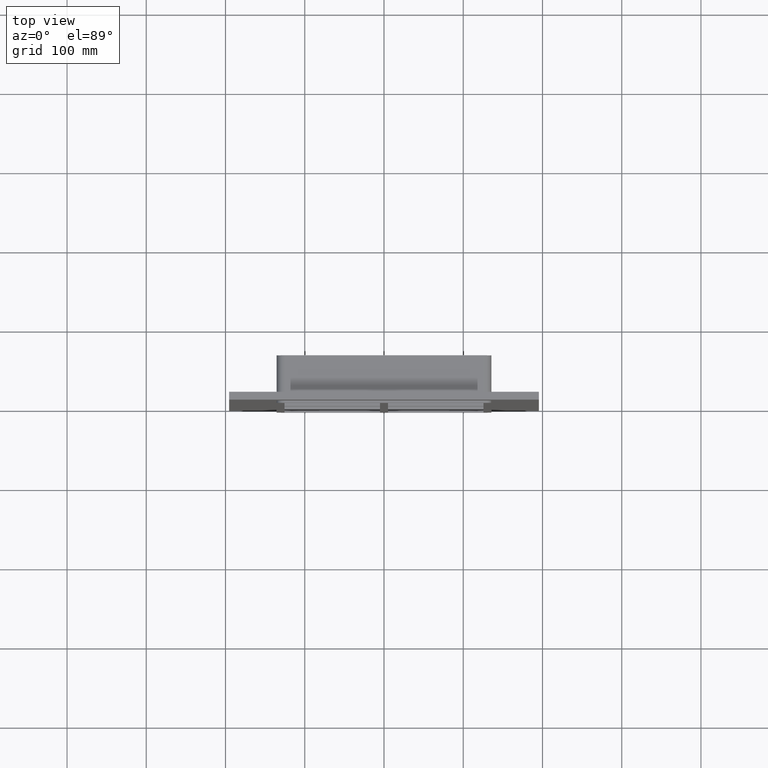
[diagram: clean part render]
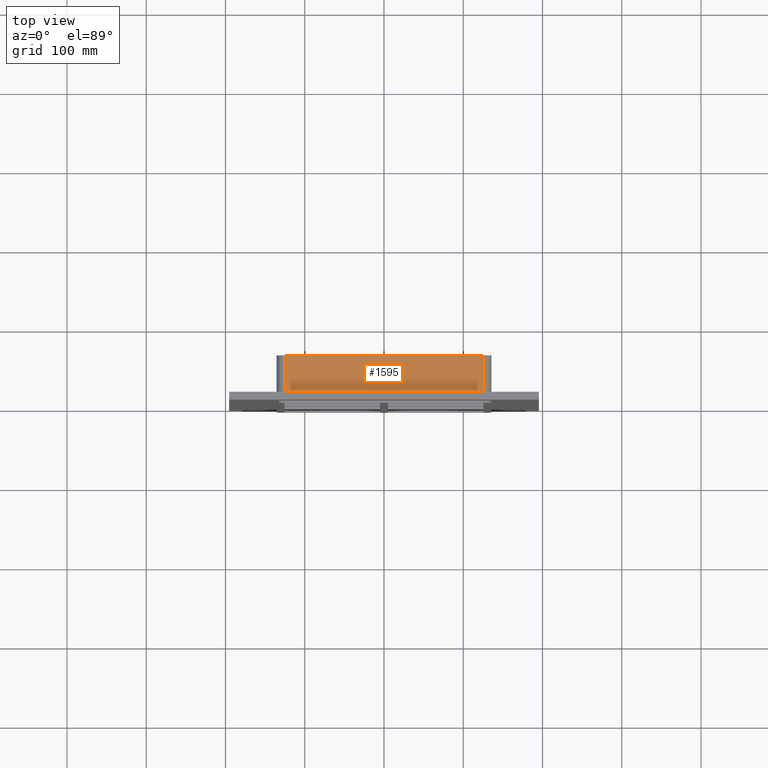
[diagram: same view with one face highlighted and labeled with its STEP entity id]
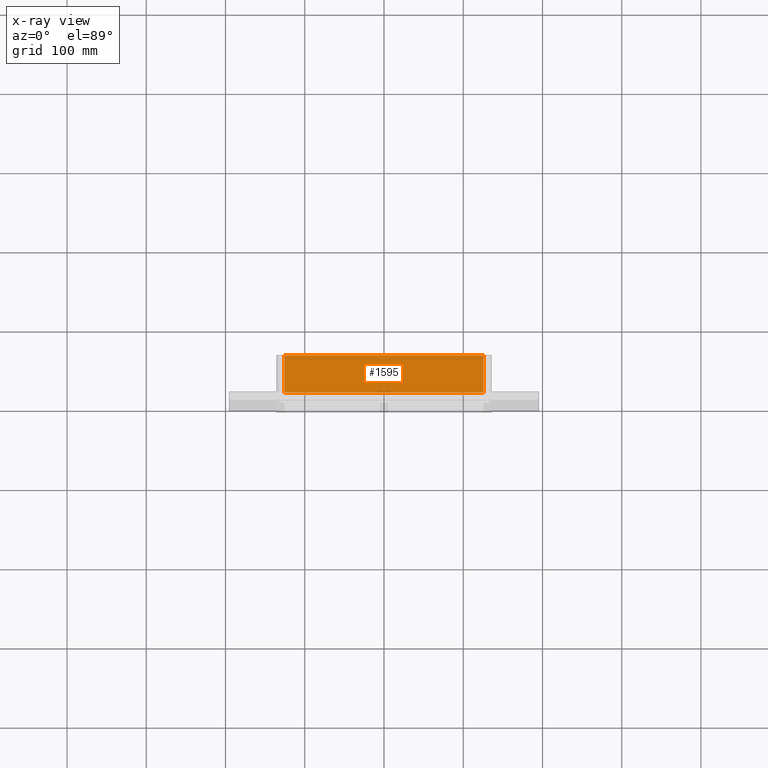
[diagram: x-ray of the same camera — body ghosted, the highlighted face saturated]
A machine part, top view. The second image highlights one B-rep face of the part: STEP entity #1595.
The next image is the same camera in x-ray: the body ghosted, the highlighted face saturated — about 0% of this face is hidden behind the body in this view.
In plain terms, the highlighted planar face has unit normal (0, 0, 1).
Its self-contained STEP definition (entity closure, byte-faithful):
#650=CARTESIAN_POINT('',(-125.5,57.0,357.0));
#651=VERTEX_POINT('',#650);
#659=CARTESIAN_POINT('',(125.5,57.0,357.0));
#660=VERTEX_POINT('',#659);
#661=CARTESIAN_POINT('',(-125.5,57.0,357.0));
#662=DIRECTION('',(1.0,0.0,0.0));
#663=VECTOR('',#662,251.0);
#664=LINE('',#661,#663);
#665=EDGE_CURVE('',#651,#660,#664,.T.);
#982=CARTESIAN_POINT('',(125.5,10.0,357.0));
#983=VERTEX_POINT('',#982);
#991=CARTESIAN_POINT('',(-125.5,10.0,357.0));
#992=VERTEX_POINT('',#991);
#993=CARTESIAN_POINT('',(-125.5,10.0,357.0));
#994=DIRECTION('',(1.0,0.0,0.0));
#995=VECTOR('',#994,251.00000000000003);
#996=LINE('',#993,#995);
#997=EDGE_CURVE('',#992,#983,#996,.T.);
#1257=CARTESIAN_POINT('',(125.5,57.0,357.0));
#1258=DIRECTION('',(0.0,-1.0,0.0));
#1259=VECTOR('',#1258,47.0);
#1260=LINE('',#1257,#1259);
#1261=EDGE_CURVE('',#660,#983,#1260,.T.);
#1573=CARTESIAN_POINT('',(-125.5,10.0,357.0));
#1574=DIRECTION('',(0.0,1.0,0.0));
#1575=VECTOR('',#1574,47.0);
#1576=LINE('',#1573,#1575);
#1577=EDGE_CURVE('',#992,#651,#1576,.T.);
#1584=CARTESIAN_POINT('',(-135.5,0.0,357.0));
#1585=DIRECTION('',(0.0,0.0,1.0));
#1586=DIRECTION('',(1.0,0.0,0.0));
#1587=AXIS2_PLACEMENT_3D('',#1584,#1585,#1586);
#1588=PLANE('',#1587);
#1589=ORIENTED_EDGE('',*,*,#997,.T.);
#1590=ORIENTED_EDGE('',*,*,#1261,.F.);
#1591=ORIENTED_EDGE('',*,*,#665,.F.);
#1592=ORIENTED_EDGE('',*,*,#1577,.F.);
#1593=EDGE_LOOP('',(#1589,#1590,#1591,#1592));
#1594=FACE_OUTER_BOUND('',#1593,.T.);
#1595=ADVANCED_FACE('',(#1594),#1588,.T.);